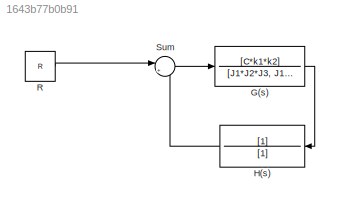
MODEL slx_1643b77b0b91
KIND model
CONFIG AbsTol = auto
CONFIG EnableMultiTasking = off
CONFIG FixedStep = auto
CONFIG MaxStep = auto
CONFIG MinStep = auto
CONFIG RelTol = 1e-3
CONFIG SampleTimeConstraint = Unconstrained
CONFIG SolverName = VariableStepAuto
CONFIG StartTime = 0.0
CONFIG StopTime = 10.0
BLOCK [TransferFcn] G(s)
  Denominator = [J1*J2*J3, J1*J2*b3 + J1*J3*b2 + J2*J3*b1, J1*J2*k2 + J1*J3*k1 + J1*J3*k2 + J1*b2*b3 + J2*J3*k1 + J2*b1*b3 + J3*b1*b2, J1*b2*k2 + J1*b3*k1 + J1*b3*k2 + J2*b1*k2 + J2*b3*k1 + J3*b1*k1 + J3*b1*k2 + J3*b2*k1 + b1*b2*b3, J1*k1*k2 + J2*k1*k2 + J3*k1*k2 + b1*b2*k2 + b1*b3*k1 + b1*b3*k2 + b2*b3*k1, b1*k1*k2 + b2*k1*k2 + b3*k1*k2, 0]
  Numerator = [C*k1*k2]
BLOCK [TransferFcn] H(s)
  Denominator = [1]
BLOCK [Constant] R
  Value = R
BLOCK [Sum] Sum
  Inputs = |+-
LINE G(s):1 -> H(s):1
LINE H(s):1 -> Sum:2
LINE R:1 -> Sum:1
LINE Sum:1 -> G(s):1
